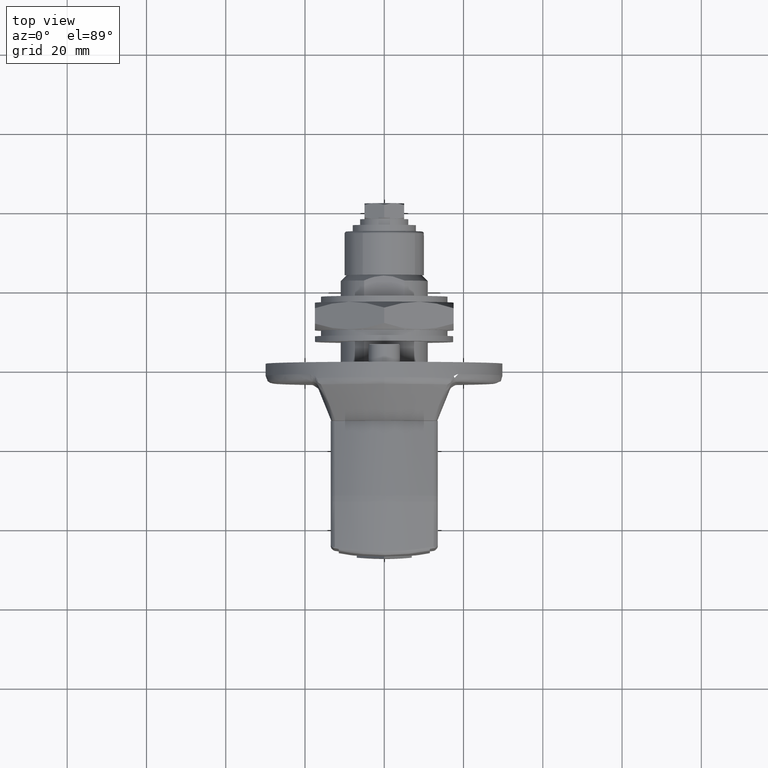
[diagram: clean part render]
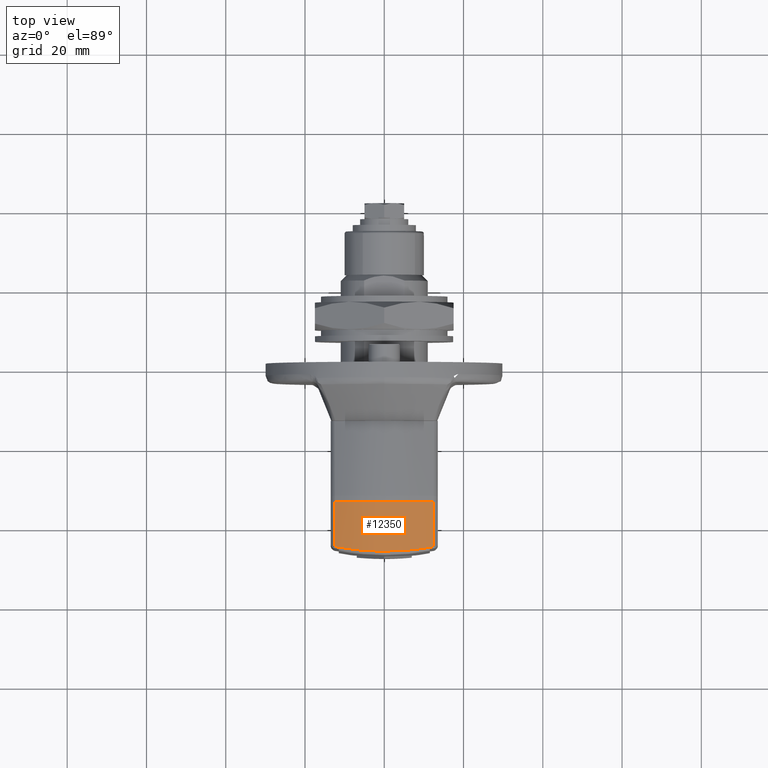
[diagram: same view with one face highlighted and labeled with its STEP entity id]
A machine part, top view. The second image highlights one B-rep face of the part: STEP entity #12350.
In plain terms, the highlighted face is a freeform B-spline surface patch.
Its self-contained STEP definition (entity closure, byte-faithful):
#6280=CARTESIAN_POINT('',(-46.381640041888097,-12.458333333333339,13.820822302352640));
#6281=VERTEX_POINT('',#6280);
#6297=CARTESIAN_POINT('',(-46.381640041888097,12.458333333333339,13.820822302352640));
#6298=VERTEX_POINT('',#6297);
#6299=CARTESIAN_POINT('',(-46.381640041888097,12.458333333333339,13.820822302352640));
#6300=CARTESIAN_POINT('',(-46.569098187863410,11.509821368328719,14.338633539569290));
#6301=CARTESIAN_POINT('',(-46.739574197797019,10.534435444729469,14.794676044517921));
#6302=CARTESIAN_POINT('',(-46.964981145903771,9.030764520550902,15.387200059150720));
#6303=CARTESIAN_POINT('',(-47.035065854618111,8.522756500827246,15.569403045212630));
#6304=CARTESIAN_POINT('',(-47.164300407301532,7.492891036098287,15.902801615313381));
#6305=CARTESIAN_POINT('',(-47.223464160359121,6.970903918196517,16.054031603311099));
#6306=CARTESIAN_POINT('',(-47.383154299020021,5.384284832723097,16.459801273887880));
#6307=CARTESIAN_POINT('',(-47.463856848010813,4.319232167545756,16.661489583176259));
#6308=CARTESIAN_POINT('',(-47.572201101735267,2.174843869220646,16.931406986300210));
#6309=CARTESIAN_POINT('',(-47.599849265415557,1.095507625828104,16.999626901738640));
#6310=CARTESIAN_POINT('',(-47.600074446054457,-0.534417422149327,17.000184268882940));
#6311=CARTESIAN_POINT('',(-47.593271275223707,-1.079550518415595,16.983359307042921));
#6312=CARTESIAN_POINT('',(-47.575983594867132,-1.763306864185431,16.940499673103069));
#6313=CARTESIAN_POINT('',(-47.572087107622458,-1.900122018238316,16.930836042248721));
#6314=CARTESIAN_POINT('',(-47.563449241252172,-2.172934572015342,16.909401322298429));
#6315=CARTESIAN_POINT('',(-47.549215847200927,-2.581313038137102,16.874064811506241));
#6316=CARTESIAN_POINT('',(-47.531197376483021,-2.987192865097827,16.829255947236842));
#6317=CARTESIAN_POINT('',(-47.462914518492880,-4.334656946529496,16.659136641252658));
#6318=CARTESIAN_POINT('',(-47.382004471685633,-5.395188056833609,16.456872413206170));
#6319=CARTESIAN_POINT('',(-47.172023157001668,-7.482521142548914,15.923328120099960));
#6320=CARTESIAN_POINT('',(-47.042936648910128,-8.509322157481527,15.592049810964239));
#6321=CARTESIAN_POINT('',(-46.853986643613702,-9.771540341821526,15.095447530414370));
#6322=CARTESIAN_POINT('',(-46.814852015789853,-10.022656293914419,14.992076775281410));
#6323=CARTESIAN_POINT('',(-46.734293561799632,-10.520385341589130,14.778033548664551));
#6324=CARTESIAN_POINT('',(-46.692829422269909,-10.767271090726361,14.667255353060080));
#6325=CARTESIAN_POINT('',(-46.565057736877350,-11.502048847473590,14.323706460657160));
#6326=CARTESIAN_POINT('',(-46.475371142463509,-11.984067091520901,14.079733521719071));
#6327=CARTESIAN_POINT('',(-46.381640041888097,-12.458333333333350,13.820822302352640));
#6328=B_SPLINE_CURVE_WITH_KNOTS('',3,(#6299,#6300,#6301,#6302,#6303,#6304,#6305,#6306,#6307,#6308,#6309,#6310,#6311,#6312,#6313,#6314,#6315,#6316,#6317,#6318,#6319,#6320,#6321,#6322,#6323,#6324,#6325,#6326,#6327),.UNSPECIFIED.,.F.,.U.,(4,2,2,2,2,2,2,2,1,2,2,2,2,2,4),(0.0,0.125000000000000,0.187500000000000,0.250000000000000,0.375000000000000,0.500000000000000,0.562500000000000,0.578125000000000,0.593750000000000,0.625000000000000,0.750000000000000,0.875000000000001,0.906250000000001,0.937500000000000,1.0),.UNSPECIFIED.);
#6329=EDGE_CURVE('',#6298,#6281,#6328,.T.);
#8888=CARTESIAN_POINT('',(-35.057057999999898,-12.458333333333320,13.820822302352640));
#8889=VERTEX_POINT('',#8888);
#8937=CARTESIAN_POINT('',(-46.381640041888097,-12.458333333333339,13.820822302352640));
#8938=CARTESIAN_POINT('',(-35.057057999999898,-12.458333333333320,13.820822302352640));
#8939=QUASI_UNIFORM_CURVE('',1,(#8937,#8938),.UNSPECIFIED.,.F.,.U.);
#8940=EDGE_CURVE('',#6281,#8889,#8939,.T.);
#8999=CARTESIAN_POINT('',(-35.057057999999898,12.458333333333339,13.820822302352640));
#9000=VERTEX_POINT('',#8999);
#9040=CARTESIAN_POINT('',(-35.057057999999898,12.458333333333339,13.820822302352640));
#9041=CARTESIAN_POINT('',(-46.381640041888097,12.458333333333339,13.820822302352640));
#9042=QUASI_UNIFORM_CURVE('',1,(#9040,#9041),.UNSPECIFIED.,.F.,.U.);
#9043=EDGE_CURVE('',#9000,#6298,#9042,.T.);
#11717=CARTESIAN_POINT('',(-35.057057999999898,-12.458333333333320,13.820822302352640));
#11718=CARTESIAN_POINT('',(-35.057057999999898,5.204170E-015,20.622070188518570));
#11719=CARTESIAN_POINT('',(-35.057057999999898,12.458333333333330,13.820822302352640));
#11727=(BOUNDED_CURVE()B_SPLINE_CURVE(2,(#11717,#11718,#11719),.UNSPECIFIED.,.F.,.U.)CURVE()GEOMETRIC_REPRESENTATION_ITEM()QUASI_UNIFORM_CURVE()RATIONAL_B_SPLINE_CURVE((1.0,0.877723934705871,1.0))REPRESENTATION_ITEM(''));
#11728=EDGE_CURVE('',#8889,#9000,#11727,.T.);
#12330=CARTESIAN_POINT('',(-34.743484449996117,12.657005674098009,13.711235267282360));
#12331=CARTESIAN_POINT('',(-47.921412888904527,12.657005674098009,13.711235267282360));
#12332=CARTESIAN_POINT('',(-34.743484449996132,-0.589093369387156,21.093306245807256));
#12333=CARTESIAN_POINT('',(-47.921412888904534,-0.589093369387156,21.093306245807256));
#12334=CARTESIAN_POINT('',(-34.743484449996117,-13.536138761564683,13.198489755559182));
#12335=CARTESIAN_POINT('',(-47.921412888904541,-13.536138761564683,13.198489755559182));
#12343=(BOUNDED_SURFACE()B_SPLINE_SURFACE(1,2,((#12330,#12332,#12334),(#12331,#12333,#12335)),.UNSPECIFIED.,.F.,.F.,.U.)B_SPLINE_SURFACE_WITH_KNOTS((2,2),(3,3),(0.0,13.177928438908420),(0.0,28.112411162491011),.UNSPECIFIED.)GEOMETRIC_REPRESENTATION_ITEM()RATIONAL_B_SPLINE_SURFACE(((1.0,0.862805732524052,0.997666864701986),(1.0,0.862805732524052,0.997666864701986)))REPRESENTATION_ITEM('')SURFACE());
#12344=ORIENTED_EDGE('',*,*,#9043,.T.);
#12345=ORIENTED_EDGE('',*,*,#6329,.T.);
#12346=ORIENTED_EDGE('',*,*,#8940,.T.);
#12347=ORIENTED_EDGE('',*,*,#11728,.T.);
#12348=EDGE_LOOP('',(#12344,#12345,#12346,#12347));
#12349=FACE_OUTER_BOUND('',#12348,.T.);
#12350=ADVANCED_FACE('',(#12349),#12343,.T.);